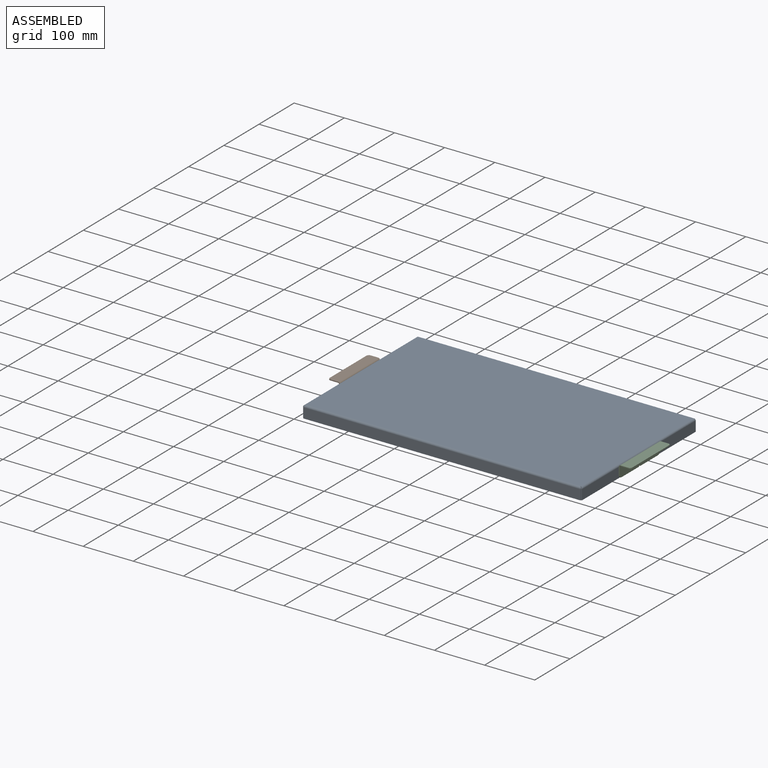
[diagram: assembled view]
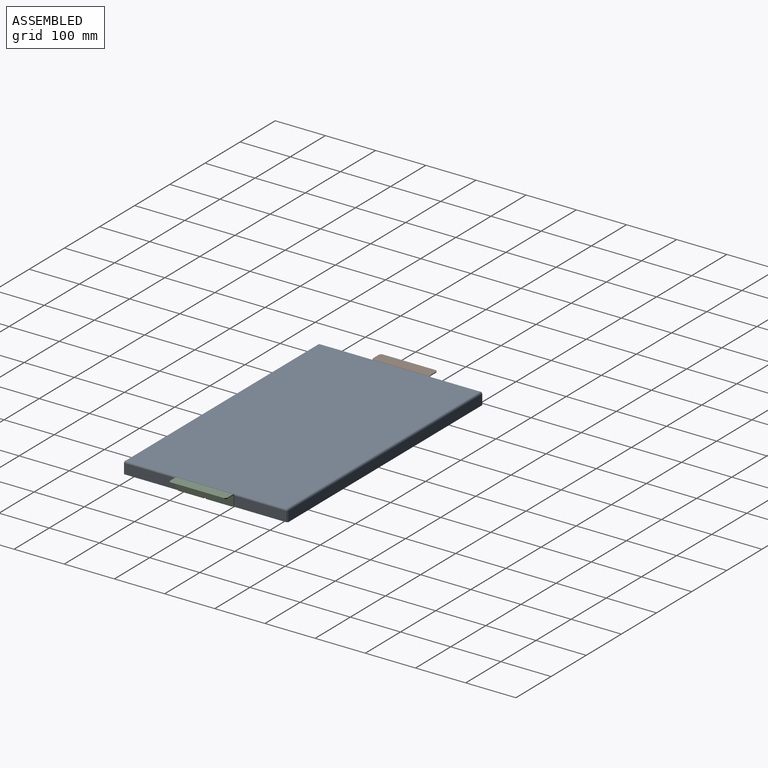
[diagram: assembled view, second angle]
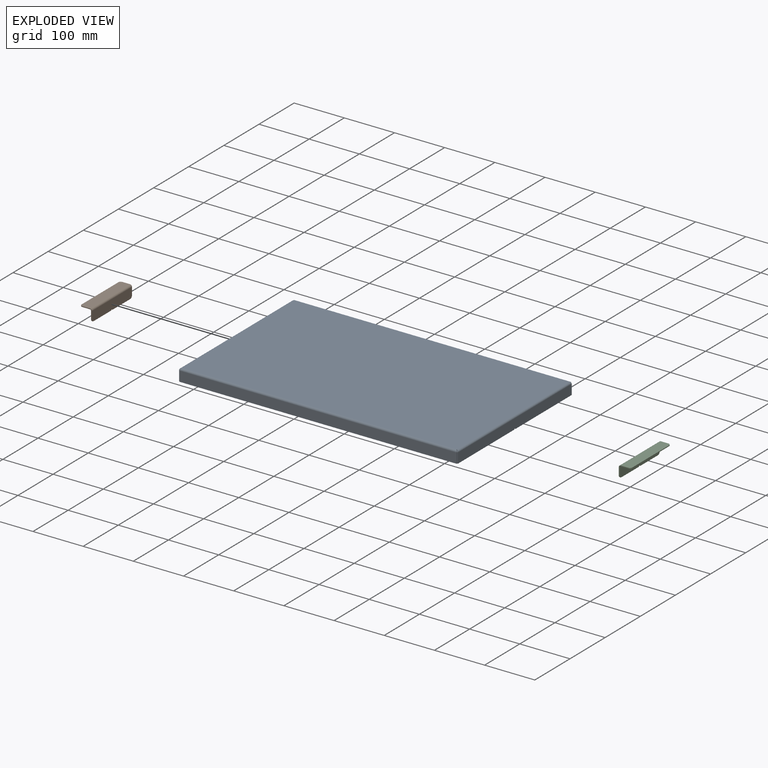
[diagram: exploded view]
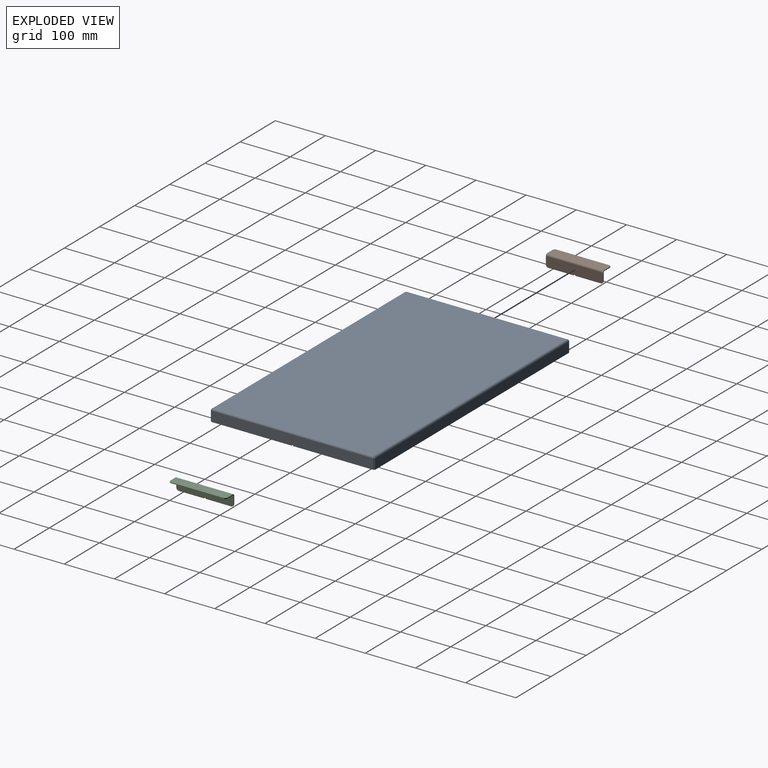
[diagram: exploded view, second angle]
ASSEMBLY  parts=3 mates=2
PART A: 50 faces, bbox 555.6x327x23.8 mm
  f0: plane 552.4x1.59mm, normal (0,0,1), area 876.9mm2, adj f1,f2,f3,f4
  f1: plane 19.94x1.59mm, normal (1,0,0), area 31.7mm2, adj f0,f3,f4,f47
  f2: plane 19.94x1.59mm, normal (-1,0,0), area 31.7mm2, adj f0,f3,f4,f46
  f3: plane 552.4x19.94mm, normal (0,1,0), area 11014.3mm2, adj f0,f1,f2,f48
  f4: plane 552.4x19.94mm, normal (0,-1,0), area 11014.3mm2, adj f0,f1,f2,f49
  f5: plane 547.88x319.28mm, normal (0,0,-1), area 174925.4mm2, adj f7,f8,f9,f10,f18,f31,f44,f48
  f6: plane 547.88x319.28mm, normal (0,0,1), area 174925.4mm2, adj f7,f8,f9,f10,f19,f32,f45,f49
  f7: plane 1.59x0.02mm, normal (0.71,-0.71,0), area 0mm2, adj f5,f6,f17,f29
  f8: plane 1.59x0.02mm, normal (-0.71,-0.71,0), area 0mm2, adj f5,f6,f16,f42
  f9: plane 1.59x0.02mm, normal (-0.71,0.71,0), area 0mm2, adj f5,f6,f43,f46
  f10: plane 1.59x0.02mm, normal (0.71,0.71,0), area 0mm2, adj f5,f6,f30,f47
  f11: plane 552.4x1.59mm, normal (0,0,1), area 876.9mm2, adj f12,f13,f14,f15
  f12: plane 19.94x1.59mm, normal (-1,0,0), area 31.7mm2, adj f11,f14,f15,f16
  f13: plane 19.94x1.59mm, normal (1,0,0), area 31.7mm2, adj f11,f14,f15,f17
  f14: plane 552.4x19.94mm, normal (0,-1,0), area 11014.3mm2, adj f11,f12,f13,f18
  f15: plane 552.4x19.94mm, normal (0,1,0), area 11014.3mm2, adj f11,f12,f13,f19
  f16: bspline ~3.87x3.87mm, area 8.6mm2, adj f8,f12,f18,f19
  f17: bspline ~3.87x3.87mm, area 8.7mm2, adj f7,f13,f18,f19
  f18: cylinder r=3.87mm len=552.4mm, axis (-1,0,0), area 3351mm2, adj f5,f14,f16,f17
  f19: cylinder r=2.29mm len=552.4mm, axis (-1,0,0), area 1977.6mm2, adj f6,f15,f16,f17
  f20: plane 19.94x1.59mm, normal (0,-1,0), area 31.7mm2, adj f24,f25,f26,f29
  f21: plane 19.94x1.59mm, normal (0,1,0), area 31.7mm2, adj f22,f25,f26,f30
  f22: plane 160.08x1.59mm, normal (0,0,1), area 254.1mm2, adj f21,f25,f26,f28
  f23: cylinder r=1.59mm len=3.14mm, axis (1,0,0), area 7.2mm2, adj f25,f26,f27,f28
  f24: plane 160.08x1.59mm, normal (0,0,1), area 254.1mm2, adj f20,f25,f26,f27
  f25: plane 323.8x19.94mm, normal (1,0,0), area 6452.3mm2, adj f20,f21,f22,f23,f24,f27,f28,f31
  f26: plane 323.8x19.94mm, normal (-1,0,0), area 6452.3mm2, adj f20,f21,f22,f23,f24,f27,f28,f32
  f27: cylinder r=0.25mm len=1.59mm, axis (1,0,0), area 0.6mm2, adj f23,f24,f25,f26
  f28: cylinder r=0.25mm len=1.59mm, axis (1,0,0), area 0.6mm2, adj f22,f23,f25,f26
  f29: bspline ~3.87x3.87mm, area 8.6mm2, adj f7,f20,f31,f32
  f30: bspline ~3.87x3.87mm, area 8.7mm2, adj f10,f21,f31,f32
  f31: cylinder r=3.87mm len=323.8mm, axis (0,-1,0), area 1960.1mm2, adj f5,f25,f29,f30
  f32: cylinder r=2.29mm len=323.8mm, axis (0,-1,0), area 1156.8mm2, adj f6,f26,f29,f30
  f33: plane 160.08x1.59mm, normal (0,0,1), area 254.1mm2, adj f34,f38,f39,f40
  f34: plane 19.94x1.59mm, normal (0,1,0), area 31.7mm2, adj f33,f38,f39,f43
  f35: plane 19.94x1.59mm, normal (0,-1,0), area 31.7mm2, adj f36,f38,f39,f42
  f36: plane 160.08x1.59mm, normal (0,0,1), area 254.1mm2, adj f35,f38,f39,f41
  f37: cylinder r=1.59mm len=3.14mm, axis (1,0,0), area 7.2mm2, adj f38,f39,f40,f41
  f38: plane 323.8x19.94mm, normal (-1,0,0), area 6452.3mm2, adj f33,f34,f35,f36,f37,f40,f41,f44
  f39: plane 323.8x19.94mm, normal (1,0,0), area 6452.3mm2, adj f33,f34,f35,f36,f37,f40,f41,f45
  f40: cylinder r=0.25mm len=1.59mm, axis (1,0,0), area 0.6mm2, adj f33,f37,f38,f39
  f41: cylinder r=0.25mm len=1.59mm, axis (1,0,0), area 0.6mm2, adj f36,f37,f38,f39
  f42: bspline ~3.87x3.87mm, area 8.7mm2, adj f8,f35,f44,f45
  f43: bspline ~3.87x3.87mm, area 8.6mm2, adj f9,f34,f44,f45
  f44: cylinder r=3.87mm len=323.8mm, axis (0,-1,0), area 1960.1mm2, adj f5,f38,f42,f43
  f45: cylinder r=2.29mm len=323.8mm, axis (0,-1,0), area 1156.8mm2, adj f6,f39,f42,f43
  f46: bspline ~3.87x3.87mm, area 8.7mm2, adj f2,f9,f48,f49
  f47: bspline ~3.87x3.87mm, area 8.6mm2, adj f1,f10,f48,f49
  f48: cylinder r=3.87mm len=552.4mm, axis (-1,0,0), area 3351mm2, adj f3,f5,f46,f47
  f49: cylinder r=2.29mm len=552.4mm, axis (-1,0,0), area 1977.7mm2, adj f4,f6,f46,f47
PART B: 22 faces, bbox 23.8x114.3x23.8 mm
  f0: plane 14.86x1.59mm, normal (0,-1,0), area 23.6mm2, adj f3,f4,f6,f19
  f1: plane 14.86x1.59mm, normal (0,1,0), area 23.6mm2, adj f3,f4,f5,f18
  f2: plane 104.14x1.59mm, normal (-1,0,0), area 165.3mm2, adj f3,f4,f5,f6
  f3: plane 114.3x19.94mm, normal (0,0,1), area 2268mm2, adj f0,f1,f2,f5,f6,f20
  f4: plane 114.3x19.94mm, normal (0,0,-1), area 2268mm2, adj f0,f1,f2,f5,f6,f21
  f5: cylinder r=5.08mm len=5.08mm, axis (0,0,-1), area 12.7mm2, adj f1,f2,f3,f4
  f6: cylinder r=5.08mm len=5.08mm, axis (0,0,1), area 12.7mm2, adj f0,f2,f3,f4
  f7: plane 50.25x1.59mm, normal (0,0,-1), area 79.8mm2, adj f12,f13,f15,f16
  f8: plane 14.86x1.59mm, normal (0,1,0), area 23.6mm2, adj f12,f13,f15,f18
  f9: plane 14.86x1.59mm, normal (0,-1,0), area 23.6mm2, adj f12,f13,f14,f19
  f10: plane 50.25x1.59mm, normal (0,0,-1), area 79.8mm2, adj f12,f13,f14,f17
  f11: cylinder r=1.59mm len=3.14mm, axis (-1,0,0), area 7.2mm2, adj f12,f13,f16,f17
  f12: plane 114.3x19.94mm, normal (1,0,0), area 2264mm2, adj f7,f8,f9,f10,f11,f14,f15,f16
  f13: plane 114.3x19.94mm, normal (-1,0,0), area 2264mm2, adj f7,f8,f9,f10,f11,f14,f15,f16
  f14: cylinder r=5.08mm len=5.08mm, axis (-1,0,0), area 12.7mm2, adj f9,f10,f12,f13
  f15: cylinder r=5.08mm len=5.08mm, axis (1,0,0), area 12.7mm2, adj f7,f8,f12,f13
  f16: cylinder r=0.25mm len=1.59mm, axis (-1,0,0), area 0.6mm2, adj f7,f11,f12,f13
  f17: cylinder r=0.25mm len=1.59mm, axis (-1,0,0), area 0.6mm2, adj f10,f11,f12,f13
  f18: plane 3.87x3.87mm, normal (0,1,0), area 7.7mm2, adj f1,f8,f20,f21
  f19: plane 3.87x3.87mm, normal (0,-1,0), area 7.7mm2, adj f0,f9,f20,f21
  f20: cylinder r=3.87mm len=114.3mm, axis (0,1,0), area 695.5mm2, adj f3,f12,f18,f19
  f21: cylinder r=2.29mm len=114.3mm, axis (0,1,0), area 410.4mm2, adj f4,f13,f18,f19
PART C: same geometry as B
PLACE A rot(axis=(1,0,0),180deg) t=(100.11,156.11,-60.1)mm
PLACE B t=(-190.4,213.26,-71.21)mm
PLACE C rot(axis=(0,0,1),180deg) t=(390.63,98.96,-71.21)mm
MATE fastened A.f23 <-> C.f11  axis (1,0,0) through (377.93,156.11,-82.32)mm
MATE fastened A.f23 <-> B.f11  axis (-1,0,0) through (-177.7,156.11,-82.32)mm
